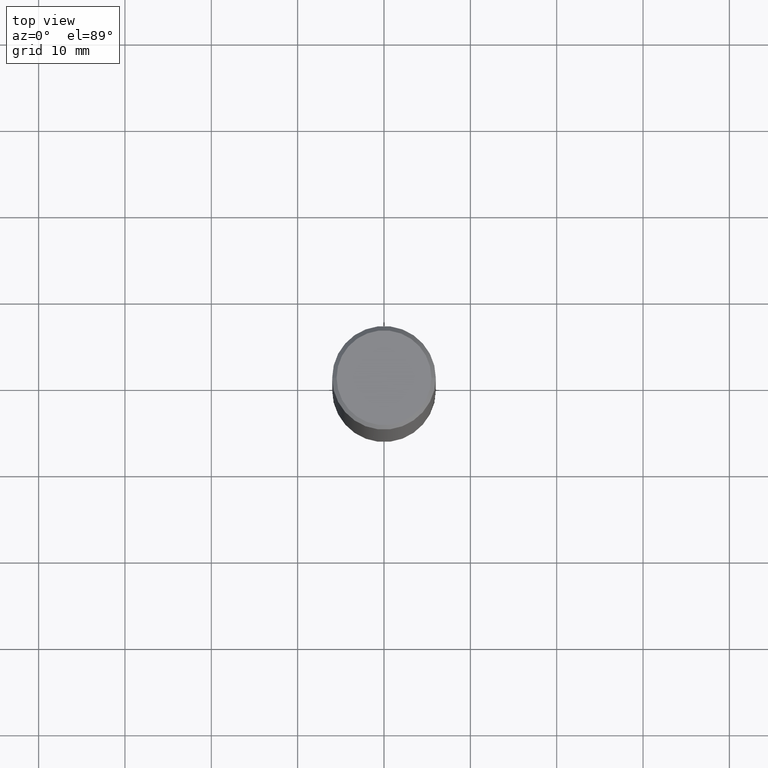
[diagram: clean part render]
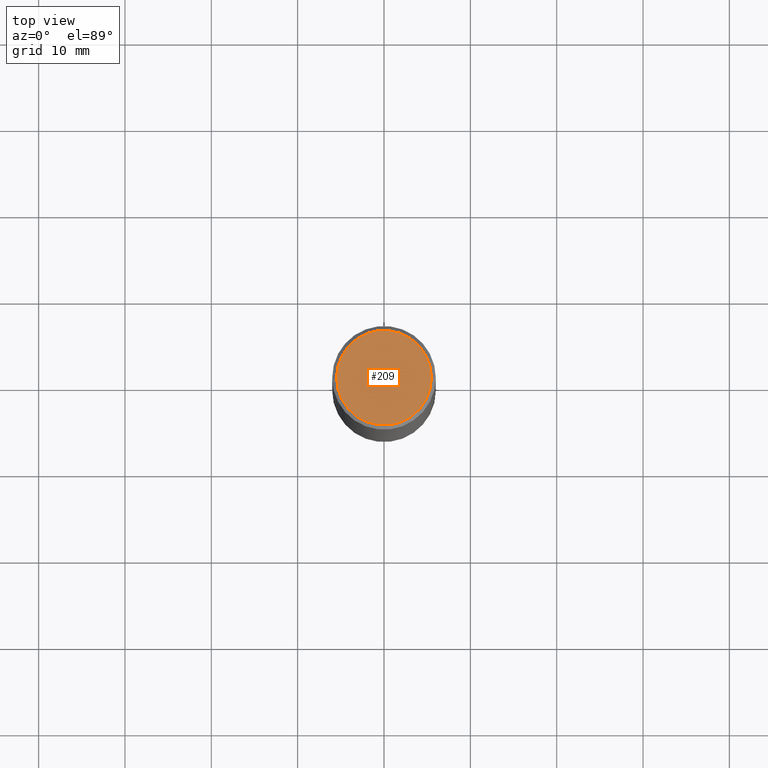
[diagram: same view with one face highlighted and labeled with its STEP entity id]
A machine part, top view. The second image highlights one B-rep face of the part: STEP entity #209.
In plain terms, the highlighted planar face has unit normal (0, -0, -1).
Its self-contained STEP definition (entity closure, byte-faithful):
#28 = CARTESIAN_POINT ( 'NONE',  ( -1.043851414335219820E-46, 1.490343170380447200E-32, 4.268512490100411279E-18 ) ) ;
#53 = ORIENTED_EDGE ( 'NONE', *, *, #227, .T. ) ;
#62 = AXIS2_PLACEMENT_3D ( 'NONE', #242, #361, #297 ) ;
#75 = CIRCLE ( 'NONE', #62, 0.2161999999999996702 ) ;
#105 = DIRECTION ( 'NONE',  ( -1.000000000000000000, 6.982962677686265922E-15, -4.876176775795935793E-29 ) ) ;
#111 = AXIS2_PLACEMENT_3D ( 'NONE', #222, #166, #105 ) ;
#113 = EDGE_CURVE ( 'NONE', #292, #319, #75, .T. ) ;
#131 = AXIS2_PLACEMENT_3D ( 'NONE', #28, #279, #228 ) ;
#144 = EDGE_LOOP ( 'NONE', ( #345, #53 ) ) ;
#166 = DIRECTION ( 'NONE',  ( 2.438088387897960049E-29, -3.491481338843145188E-15, -1.000000000000000000 ) ) ;
#209 = ADVANCED_FACE ( 'NONE', ( #303 ), #343, .F. ) ;
#222 = CARTESIAN_POINT ( 'NONE',  ( 1.509716530915768351E-15, 0.2161999999999996702, -7.527240092128367232E-16 ) ) ;
#227 = EDGE_CURVE ( 'NONE', #319, #292, #326, .T. ) ;
#228 = DIRECTION ( 'NONE',  ( 1.000000000000000000, -6.982962677686266711E-15, 4.876217060660162962E-29 ) ) ;
#242 = CARTESIAN_POINT ( 'NONE',  ( -1.043851414335219820E-46, 1.490343170380447200E-32, 4.268512490100411279E-18 ) ) ;
#279 = DIRECTION ( 'NONE',  ( -2.445468806185136597E-29, 3.491481338843145583E-15, 1.000000000000000000 ) ) ;
#292 = VERTEX_POINT ( 'NONE', #341 ) ;
#297 = DIRECTION ( 'NONE',  ( 1.000000000000000000, -6.982962677686266711E-15, 4.876217060660162962E-29 ) ) ;
#303 = FACE_OUTER_BOUND ( 'NONE', #144, .T. ) ;
#305 = CARTESIAN_POINT ( 'NONE',  ( 0.2161999999999996702, -1.586759460484349818E-15, 4.268512490111238857E-18 ) ) ;
#319 = VERTEX_POINT ( 'NONE', #305 ) ;
#326 = CIRCLE ( 'NONE', #131, 0.2161999999999996702 ) ;
#341 = CARTESIAN_POINT ( 'NONE',  ( -0.2161999999999996702, 1.544631344304199803E-15, 4.268512490089730842E-18 ) ) ;
#343 = PLANE ( 'NONE',  #111 ) ;
#345 = ORIENTED_EDGE ( 'NONE', *, *, #113, .T. ) ;
#361 = DIRECTION ( 'NONE',  ( -2.445468806185136597E-29, 3.491481338843145583E-15, 1.000000000000000000 ) ) ;